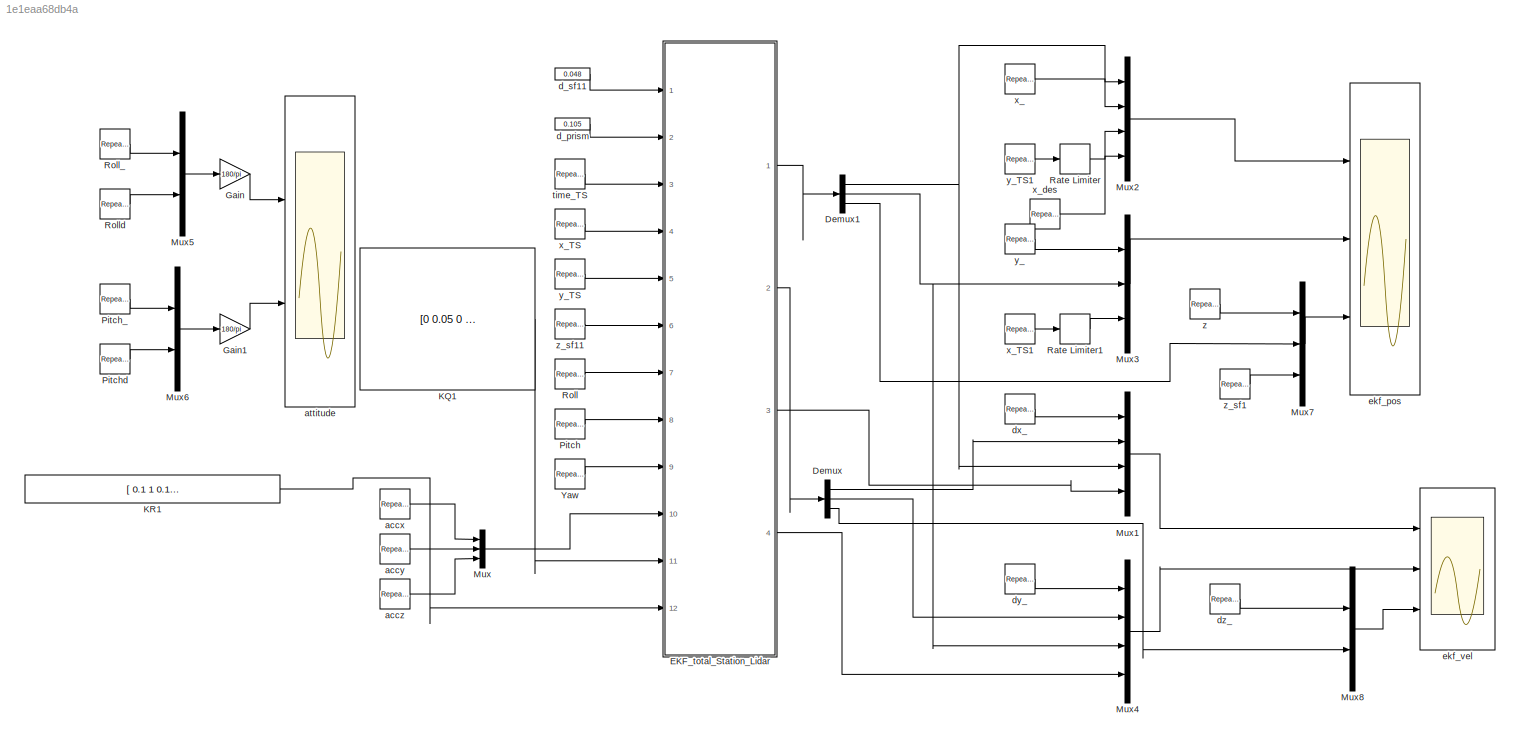
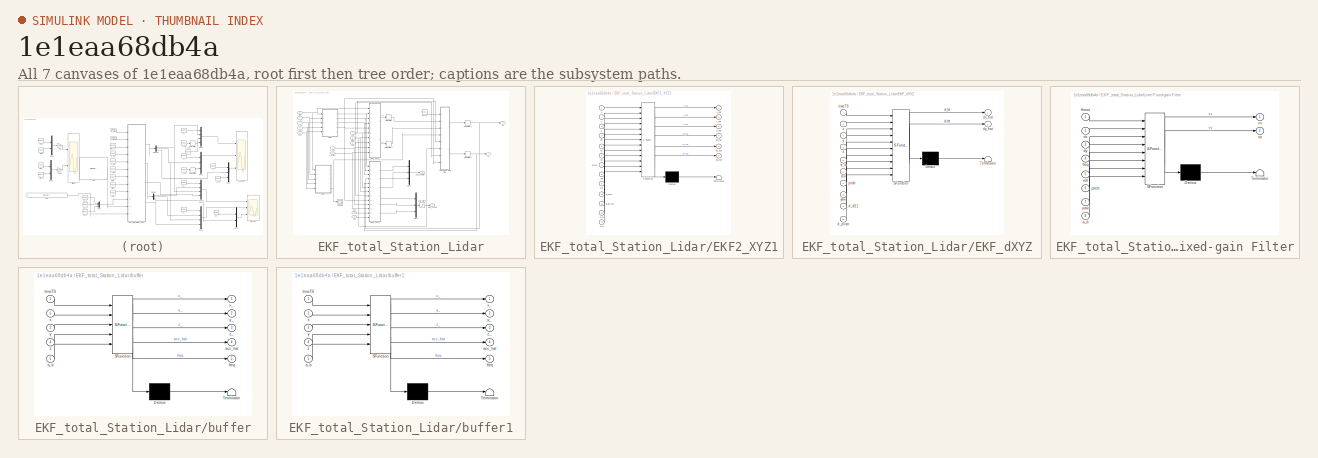
[diagram: thumbnail index - all 7 canvases of the model, root first then tree order]
MODEL slx_1e1eaa68db4a
KIND model
CONFIG AbsTol = auto
CONFIG EnableMultiTasking = off
CONFIG FixedStep = 0.0025
CONFIG InitFcn = time = Data(size(Data,1),1);
CONFIG MaxStep = auto
CONFIG MinStep = auto
CONFIG RelTol = 1e-3
CONFIG SampleTimeConstraint = Unconstrained
CONFIG Solver = FixedStepDiscrete
CONFIG SolverName = FixedStepDiscrete
CONFIG StartTime = 0.0
CONFIG StopTime = time
BLOCK [Demux] Demux
  DisplayOption = bar
  Outputs = 3
  Ports = [1, 3]
BLOCK [Demux] Demux1
  DisplayOption = bar
  Outputs = 3
  Ports = [1, 3]
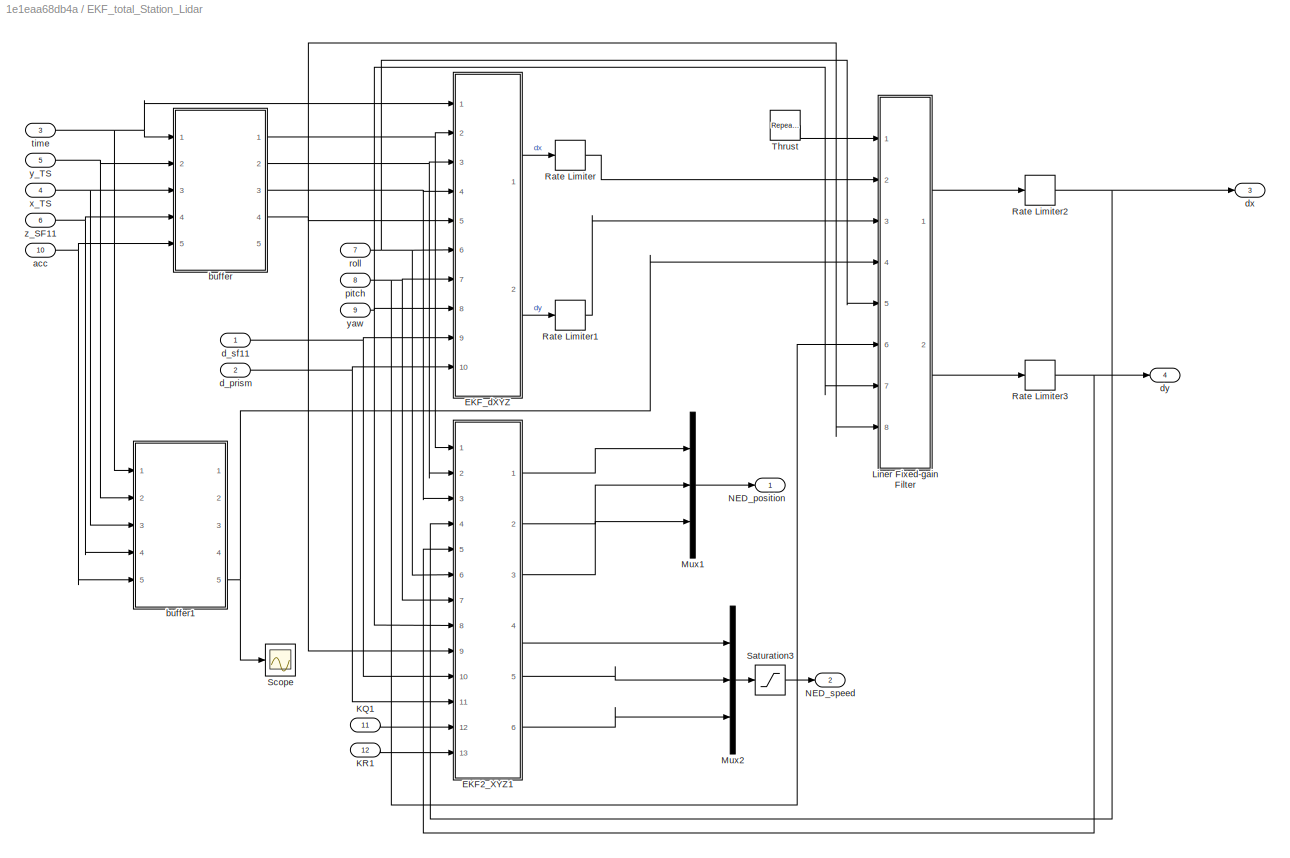
BLOCK [SubSystem] EKF_total_Station_Lidar
  Ports = [12, 4]
  RequestExecContextInheritance = off
  Variant = off
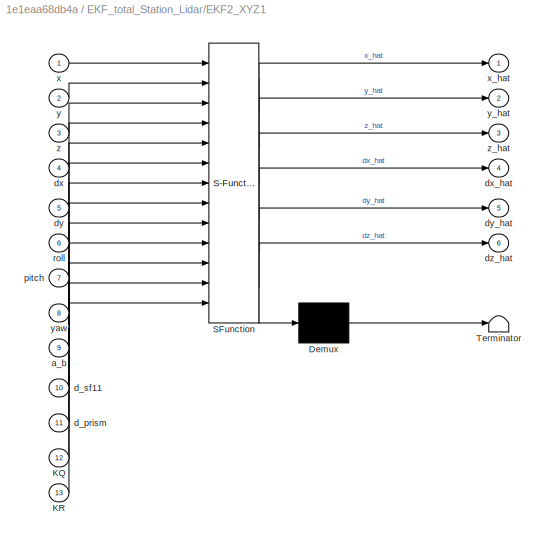
BLOCK [SubSystem] EKF_total_Station_Lidar/EKF2_XYZ1
  ErrorFcn = Stateflow.Translate.translate
  PermitHierarchicalResolution = ExplicitOnly
  Ports = [13, 6]
  RequestExecContextInheritance = off
  SFBlockType = MATLAB Function
  TreatAsAtomicUnit = on
  Variant = off
BLOCK [Demux] EKF_total_Station_Lidar/EKF2_XYZ1/ Demux 
  Outputs = 1
  Ports = [1, 1]
BLOCK [S-Function] EKF_total_Station_Lidar/EKF2_XYZ1/ SFunction 
  EnableBusSupport = on
  FunctionName = sf_sfun
  PortCounts = [13 7]
  Ports = [13, 7]
  SFcnIsStateOwnerBlock = off
  SFunctionDeploymentMode = off
  Tag = Stateflow S-Function Tests 5
BLOCK [Terminator] EKF_total_Station_Lidar/EKF2_XYZ1/ Terminator 
BLOCK [Inport] EKF_total_Station_Lidar/EKF2_XYZ1/KQ
  IconDisplay = Port number
  Port = 12
BLOCK [Inport] EKF_total_Station_Lidar/EKF2_XYZ1/KR
  IconDisplay = Port number
  Port = 13
BLOCK [Inport] EKF_total_Station_Lidar/EKF2_XYZ1/a_b
  IconDisplay = Port number
  Port = 9
BLOCK [Inport] EKF_total_Station_Lidar/EKF2_XYZ1/d_prism
  IconDisplay = Port number
  Port = 11
BLOCK [Inport] EKF_total_Station_Lidar/EKF2_XYZ1/d_sf11
  IconDisplay = Port number
  Port = 10
BLOCK [Inport] EKF_total_Station_Lidar/EKF2_XYZ1/dx
  IconDisplay = Port number
  Port = 4
BLOCK [Outport] EKF_total_Station_Lidar/EKF2_XYZ1/dx_hat
  IconDisplay = Port number
  Port = 4
BLOCK [Inport] EKF_total_Station_Lidar/EKF2_XYZ1/dy
  IconDisplay = Port number
  Port = 5
BLOCK [Outport] EKF_total_Station_Lidar/EKF2_XYZ1/dy_hat
  IconDisplay = Port number
  Port = 5
BLOCK [Outport] EKF_total_Station_Lidar/EKF2_XYZ1/dz_hat
  IconDisplay = Port number
  Port = 6
BLOCK [Inport] EKF_total_Station_Lidar/EKF2_XYZ1/pitch
  IconDisplay = Port number
  Port = 7
BLOCK [Inport] EKF_total_Station_Lidar/EKF2_XYZ1/roll
  IconDisplay = Port number
  Port = 6
BLOCK [Inport] EKF_total_Station_Lidar/EKF2_XYZ1/x
  IconDisplay = Port number
BLOCK [Outport] EKF_total_Station_Lidar/EKF2_XYZ1/x_hat
  IconDisplay = Port number
BLOCK [Inport] EKF_total_Station_Lidar/EKF2_XYZ1/y
  IconDisplay = Port number
  Port = 2
BLOCK [Outport] EKF_total_Station_Lidar/EKF2_XYZ1/y_hat
  IconDisplay = Port number
  Port = 2
BLOCK [Inport] EKF_total_Station_Lidar/EKF2_XYZ1/yaw
  IconDisplay = Port number
  Port = 8
BLOCK [Inport] EKF_total_Station_Lidar/EKF2_XYZ1/z
  IconDisplay = Port number
  Port = 3
BLOCK [Outport] EKF_total_Station_Lidar/EKF2_XYZ1/z_hat
  IconDisplay = Port number
  Port = 3
BLOCK [SubSystem] EKF_total_Station_Lidar/EKF_dXYZ
  ErrorFcn = Stateflow.Translate.translate
  PermitHierarchicalResolution = ExplicitOnly
  Ports = [10, 2]
  RequestExecContextInheritance = off
  SFBlockType = MATLAB Function
  TreatAsAtomicUnit = on
  Variant = off
BLOCK [Demux] EKF_total_Station_Lidar/EKF_dXYZ/ Demux 
  Outputs = 1
  Ports = [1, 1]
BLOCK [S-Function] EKF_total_Station_Lidar/EKF_dXYZ/ SFunction 
  EnableBusSupport = on
  FunctionName = sf_sfun
  PortCounts = [10 3]
  Ports = [10, 3]
  SFcnIsStateOwnerBlock = off
  SFunctionDeploymentMode = off
  Tag = Stateflow S-Function Tests 1
BLOCK [Terminator] EKF_total_Station_Lidar/EKF_dXYZ/ Terminator 
BLOCK [Inport] EKF_total_Station_Lidar/EKF_dXYZ/a_b
  IconDisplay = Port number
  Port = 5
BLOCK [Inport] EKF_total_Station_Lidar/EKF_dXYZ/d_prism
  IconDisplay = Port number
  Port = 10
BLOCK [Inport] EKF_total_Station_Lidar/EKF_dXYZ/d_sf11
  IconDisplay = Port number
  Port = 9
BLOCK [Outport] EKF_total_Station_Lidar/EKF_dXYZ/dx_hat
  IconDisplay = Port number
BLOCK [Outport] EKF_total_Station_Lidar/EKF_dXYZ/dy_hat
  IconDisplay = Port number
  Port = 2
BLOCK [Inport] EKF_total_Station_Lidar/EKF_dXYZ/pitch
  IconDisplay = Port number
  Port = 7
BLOCK [Inport] EKF_total_Station_Lidar/EKF_dXYZ/roll
  IconDisplay = Port number
  Port = 6
BLOCK [Inport] EKF_total_Station_Lidar/EKF_dXYZ/timeTS
  IconDisplay = Port number
BLOCK [Inport] EKF_total_Station_Lidar/EKF_dXYZ/x
  IconDisplay = Port number
  Port = 2
BLOCK [Inport] EKF_total_Station_Lidar/EKF_dXYZ/y
  IconDisplay = Port number
  Port = 3
BLOCK [Inport] EKF_total_Station_Lidar/EKF_dXYZ/yaw
  IconDisplay = Port number
  Port = 8
BLOCK [Inport] EKF_total_Station_Lidar/EKF_dXYZ/z
  IconDisplay = Port number
  Port = 4
BLOCK [Inport] EKF_total_Station_Lidar/KQ1
  IconDisplay = Port number
  Port = 11
BLOCK [Inport] EKF_total_Station_Lidar/KR1
  IconDisplay = Port number
  Port = 12
BLOCK [SubSystem] EKF_total_Station_Lidar/Liner Fixed-gain Filter
  ErrorFcn = Stateflow.Translate.translate
  PermitHierarchicalResolution = ExplicitOnly
  Ports = [8, 2]
  RequestExecContextInheritance = off
  SFBlockType = MATLAB Function
  TreatAsAtomicUnit = on
  Variant = off
BLOCK [Demux] EKF_total_Station_Lidar/Liner Fixed-gain Filter/ Demux 
  Outputs = 1
  Ports = [1, 1]
BLOCK [S-Function] EKF_total_Station_Lidar/Liner Fixed-gain Filter/ SFunction 
  EnableBusSupport = on
  FunctionName = sf_sfun
  PortCounts = [8 3]
  Ports = [8, 3]
  SFcnIsStateOwnerBlock = off
  SFunctionDeploymentMode = off
  Tag = Stateflow S-Function Tests 4
BLOCK [Terminator] EKF_total_Station_Lidar/Liner Fixed-gain Filter/ Terminator 
BLOCK [Inport] EKF_total_Station_Lidar/Liner Fixed-gain Filter/a_b
  IconDisplay = Port number
  Port = 8
BLOCK [Inport] EKF_total_Station_Lidar/Liner Fixed-gain Filter/dx
  IconDisplay = Port number
  Port = 2
BLOCK [Inport] EKF_total_Station_Lidar/Liner Fixed-gain Filter/dy
  IconDisplay = Port number
  Port = 3
BLOCK [Inport] EKF_total_Station_Lidar/Liner Fixed-gain Filter/freq
  IconDisplay = Port number
  Port = 4
BLOCK [Inport] EKF_total_Station_Lidar/Liner Fixed-gain Filter/pitch
  IconDisplay = Port number
  Port = 6
BLOCK [Inport] EKF_total_Station_Lidar/Liner Fixed-gain Filter/roll
  IconDisplay = Port number
  Port = 5
BLOCK [Inport] EKF_total_Station_Lidar/Liner Fixed-gain Filter/thrust
  IconDisplay = Port number
BLOCK [Outport] EKF_total_Station_Lidar/Liner Fixed-gain Filter/vx
  IconDisplay = Port number
BLOCK [Outport] EKF_total_Station_Lidar/Liner Fixed-gain Filter/vy
  IconDisplay = Port number
  Port = 2
BLOCK [Inport] EKF_total_Station_Lidar/Liner Fixed-gain Filter/yaw
  IconDisplay = Port number
  Port = 7
BLOCK [Mux] EKF_total_Station_Lidar/Mux1
  DisplayOption = bar
  Inputs = 3
  Ports = [3, 1]
BLOCK [Mux] EKF_total_Station_Lidar/Mux2
  DisplayOption = bar
  Inputs = 3
  Ports = [3, 1]
BLOCK [Outport] EKF_total_Station_Lidar/NED_position
  IconDisplay = Port number
BLOCK [Outport] EKF_total_Station_Lidar/NED_speed
  IconDisplay = Port number
  Port = 2
BLOCK [RateLimiter] EKF_total_Station_Lidar/Rate Limiter
  FallingSlewLimit = -5
  RisingSlewLimit = 5
  SampleTimeMode = inherited
BLOCK [RateLimiter] EKF_total_Station_Lidar/Rate Limiter1
  FallingSlewLimit = -5
  RisingSlewLimit = 5
  SampleTimeMode = inherited
BLOCK [RateLimiter] EKF_total_Station_Lidar/Rate Limiter2
  FallingSlewLimit = -5
  RisingSlewLimit = 5
  SampleTimeMode = inherited
BLOCK [RateLimiter] EKF_total_Station_Lidar/Rate Limiter3
  FallingSlewLimit = -5
  RisingSlewLimit = 5
  SampleTimeMode = inherited
BLOCK [Saturate] EKF_total_Station_Lidar/Saturation3
  InputPortMap = u0
  LowerLimit = -10
  Ports = [1, 1]
  UpperLimit = 10
BLOCK [Scope] EKF_total_Station_Lidar/Scope
  NumInputPorts = 1
  Ports = [1]
  ScopeSpecificationString = Simulink.scopes.TimeScopeBlockCfg('CurrentConfiguration', extmgr.ConfigurationSet(extmgr.Configuration('Core','General UI',true),extmgr.Configuration('Core','Source UI',true),extmgr.Configuration('Sources','WiredSimulink',true,'DataLoggingVariableName','ScopeData1'),extmgr.Configuration('Visuals','Time Domain',true,'SerializedDisplays',{struct('MinYLimReal','-1.25','MaxYLimReal','21.25','YLabelRea...<+1455ch>
BLOCK [Reference] EKF_total_Station_Lidar/Thrust  REF=simulink/Sources/Repeating
Sequence
Interpolated
  Ports = [0, 1]
  SourceBlock = simulink/Sources/Repeating\nSequence\nInterpolated
  SourceProductBaseCode = SL
  SourceProductName = Simulink
  SourceType = Repeating Sequence Interpolated
BLOCK [Inport] EKF_total_Station_Lidar/acc
  IconDisplay = Port number
  Port = 10
BLOCK [SubSystem] EKF_total_Station_Lidar/buffer
  ErrorFcn = Stateflow.Translate.translate
  PermitHierarchicalResolution = ExplicitOnly
  Ports = [5, 5]
  RequestExecContextInheritance = off
  SFBlockType = MATLAB Function
  TreatAsAtomicUnit = on
  Variant = off
BLOCK [Demux] EKF_total_Station_Lidar/buffer/ Demux 
  Outputs = 1
  Ports = [1, 1]
BLOCK [S-Function] EKF_total_Station_Lidar/buffer/ SFunction 
  EnableBusSupport = on
  FunctionName = sf_sfun
  PortCounts = [5 6]
  Ports = [5, 6]
  SFcnIsStateOwnerBlock = off
  SFunctionDeploymentMode = off
  Tag = Stateflow S-Function Tests 3
BLOCK [Terminator] EKF_total_Station_Lidar/buffer/ Terminator 
BLOCK [Inport] EKF_total_Station_Lidar/buffer/a_b
  IconDisplay = Port number
  Port = 5
BLOCK [Outport] EKF_total_Station_Lidar/buffer/acc_hat
  IconDisplay = Port number
  Port = 4
BLOCK [Outport] EKF_total_Station_Lidar/buffer/freq
  IconDisplay = Port number
  Port = 5
BLOCK [Inport] EKF_total_Station_Lidar/buffer/timeTS
  IconDisplay = Port number
BLOCK [Inport] EKF_total_Station_Lidar/buffer/x
  IconDisplay = Port number
  Port = 2
BLOCK [Outport] EKF_total_Station_Lidar/buffer/x_
  IconDisplay = Port number
BLOCK [Inport] EKF_total_Station_Lidar/buffer/y
  IconDisplay = Port number
  Port = 3
BLOCK [Outport] EKF_total_Station_Lidar/buffer/y_
  IconDisplay = Port number
  Port = 2
BLOCK [Inport] EKF_total_Station_Lidar/buffer/z
  IconDisplay = Port number
  Port = 4
BLOCK [Outport] EKF_total_Station_Lidar/buffer/z_
  IconDisplay = Port number
  Port = 3
BLOCK [SubSystem] EKF_total_Station_Lidar/buffer1
  ErrorFcn = Stateflow.Translate.translate
  PermitHierarchicalResolution = ExplicitOnly
  Ports = [5, 5]
  RequestExecContextInheritance = off
  SFBlockType = MATLAB Function
  TreatAsAtomicUnit = on
  Variant = off
BLOCK [Demux] EKF_total_Station_Lidar/buffer1/ Demux 
  Outputs = 1
  Ports = [1, 1]
BLOCK [S-Function] EKF_total_Station_Lidar/buffer1/ SFunction 
  EnableBusSupport = on
  FunctionName = sf_sfun
  PortCounts = [5 6]
  Ports = [5, 6]
  SFcnIsStateOwnerBlock = off
  SFunctionDeploymentMode = off
  Tag = Stateflow S-Function Tests 2
BLOCK [Terminator] EKF_total_Station_Lidar/buffer1/ Terminator 
BLOCK [Inport] EKF_total_Station_Lidar/buffer1/a_b
  IconDisplay = Port number
  Port = 5
BLOCK [Outport] EKF_total_Station_Lidar/buffer1/acc_hat
  IconDisplay = Port number
  Port = 4
BLOCK [Outport] EKF_total_Station_Lidar/buffer1/freq
  IconDisplay = Port number
  Port = 5
BLOCK [Inport] EKF_total_Station_Lidar/buffer1/timeTS
  IconDisplay = Port number
BLOCK [Inport] EKF_total_Station_Lidar/buffer1/x
  IconDisplay = Port number
  Port = 2
BLOCK [Outport] EKF_total_Station_Lidar/buffer1/x_
  IconDisplay = Port number
BLOCK [Inport] EKF_total_Station_Lidar/buffer1/y
  IconDisplay = Port number
  Port = 3
BLOCK [Outport] EKF_total_Station_Lidar/buffer1/y_
  IconDisplay = Port number
  Port = 2
BLOCK [Inport] EKF_total_Station_Lidar/buffer1/z
  IconDisplay = Port number
  Port = 4
BLOCK [Outport] EKF_total_Station_Lidar/buffer1/z_
  IconDisplay = Port number
  Port = 3
BLOCK [Inport] EKF_total_Station_Lidar/d_prism
  IconDisplay = Port number
  Port = 2
BLOCK [Inport] EKF_total_Station_Lidar/d_sf11
  IconDisplay = Port number
BLOCK [Outport] EKF_total_Station_Lidar/dx
  IconDisplay = Port number
  Port = 3
BLOCK [Outport] EKF_total_Station_Lidar/dy
  IconDisplay = Port number
  Port = 4
BLOCK [Inport] EKF_total_Station_Lidar/pitch
  IconDisplay = Port number
  Port = 8
BLOCK [Inport] EKF_total_Station_Lidar/roll
  IconDisplay = Port number
  Port = 7
BLOCK [Inport] EKF_total_Station_Lidar/time
  IconDisplay = Port number
  Port = 3
BLOCK [Inport] EKF_total_Station_Lidar/x_TS
  IconDisplay = Port number
  Port = 4
BLOCK [Inport] EKF_total_Station_Lidar/y_TS
  IconDisplay = Port number
  Port = 5
BLOCK [Inport] EKF_total_Station_Lidar/yaw
  IconDisplay = Port number
  Port = 9
BLOCK [Inport] EKF_total_Station_Lidar/z_SF11
  IconDisplay = Port number
  Port = 6
BLOCK [Gain] Gain
  Gain = 180/pi
  OutDataTypeStr = Inherit: Inherit via internal rule
  ParamDataTypeStr = Inherit: Inherit via internal rule
  SaturateOnIntegerOverflow = off
BLOCK [Gain] Gain1
  Gain = 180/pi
  OutDataTypeStr = Inherit: Inherit via internal rule
  ParamDataTypeStr = Inherit: Inherit via internal rule
  SaturateOnIntegerOverflow = off
BLOCK [Constant] KQ1
  Value = [0 0.05  0 0.05 0 0.0025]
BLOCK [Constant] KR1
  Value = [ 0.1 1 0.1 1 0.1]
BLOCK [Mux] Mux
  DisplayOption = bar
  Inputs = 3
  Ports = [3, 1]
BLOCK [Mux] Mux1
  DisplayOption = bar
  Ports = [4, 1]
BLOCK [Mux] Mux2
  DisplayOption = bar
  Ports = [4, 1]
BLOCK [Mux] Mux3
  DisplayOption = bar
  Inputs = 3
  Ports = [3, 1]
BLOCK [Mux] Mux4
  DisplayOption = bar
  Ports = [4, 1]
BLOCK [Mux] Mux5
  DisplayOption = bar
  Inputs = 2
  Ports = [2, 1]
BLOCK [Mux] Mux6
  DisplayOption = bar
  Inputs = 2
  Ports = [2, 1]
BLOCK [Mux] Mux7
  DisplayOption = bar
  Inputs = 3
  Ports = [3, 1]
BLOCK [Mux] Mux8
  DisplayOption = bar
  Inputs = 2
  Ports = [2, 1]
BLOCK [Reference] Pitch  REF=simulink/Sources/Repeating
Sequence
Interpolated
  Ports = [0, 1]
  SourceBlock = simulink/Sources/Repeating\nSequence\nInterpolated
  SourceProductBaseCode = SL
  SourceProductName = Simulink
  SourceType = Repeating Sequence Interpolated
BLOCK [Reference] Pitch_  REF=simulink/Sources/Repeating
Sequence
Interpolated
  Ports = [0, 1]
  SourceBlock = simulink/Sources/Repeating\nSequence\nInterpolated
  SourceProductBaseCode = SL
  SourceProductName = Simulink
  SourceType = Repeating Sequence Interpolated
BLOCK [Reference] Pitchd  REF=simulink/Sources/Repeating
Sequence
Interpolated
  Ports = [0, 1]
  SourceBlock = simulink/Sources/Repeating\nSequence\nInterpolated
  SourceProductBaseCode = SL
  SourceProductName = Simulink
  SourceType = Repeating Sequence Interpolated
BLOCK [RateLimiter] Rate Limiter
  FallingSlewLimit = -10
  RisingSlewLimit = 10
  SampleTimeMode = inherited
BLOCK [RateLimiter] Rate Limiter1
  FallingSlewLimit = -10
  RisingSlewLimit = 10
  SampleTimeMode = inherited
BLOCK [Reference] Roll  REF=simulink/Sources/Repeating
Sequence
Interpolated
  Ports = [0, 1]
  SourceBlock = simulink/Sources/Repeating\nSequence\nInterpolated
  SourceProductBaseCode = SL
  SourceProductName = Simulink
  SourceType = Repeating Sequence Interpolated
BLOCK [Reference] Roll_  REF=simulink/Sources/Repeating
Sequence
Interpolated
  Ports = [0, 1]
  SourceBlock = simulink/Sources/Repeating\nSequence\nInterpolated
  SourceProductBaseCode = SL
  SourceProductName = Simulink
  SourceType = Repeating Sequence Interpolated
BLOCK [Reference] Rolld  REF=simulink/Sources/Repeating
Sequence
Interpolated
  Ports = [0, 1]
  SourceBlock = simulink/Sources/Repeating\nSequence\nInterpolated
  SourceProductBaseCode = SL
  SourceProductName = Simulink
  SourceType = Repeating Sequence Interpolated
BLOCK [Reference] Yaw  REF=simulink/Sources/Repeating
Sequence
Interpolated
  Ports = [0, 1]
  SourceBlock = simulink/Sources/Repeating\nSequence\nInterpolated
  SourceProductBaseCode = SL
  SourceProductName = Simulink
  SourceType = Repeating Sequence Interpolated
BLOCK [Reference] accx  REF=simulink/Sources/Repeating
Sequence
Interpolated
  Ports = [0, 1]
  SourceBlock = simulink/Sources/Repeating\nSequence\nInterpolated
  SourceProductBaseCode = SL
  SourceProductName = Simulink
  SourceType = Repeating Sequence Interpolated
BLOCK [Reference] accy  REF=simulink/Sources/Repeating
Sequence
Interpolated
  Ports = [0, 1]
  SourceBlock = simulink/Sources/Repeating\nSequence\nInterpolated
  SourceProductBaseCode = SL
  SourceProductName = Simulink
  SourceType = Repeating Sequence Interpolated
BLOCK [Reference] accz  REF=simulink/Sources/Repeating
Sequence
Interpolated
  Ports = [0, 1]
  SourceBlock = simulink/Sources/Repeating\nSequence\nInterpolated
  SourceProductBaseCode = SL
  SourceProductName = Simulink
  SourceType = Repeating Sequence Interpolated
BLOCK [Scope] attitude
  NumInputPorts = 2
  Ports = [2]
  ScopeSpecificationString = Simulink.scopes.TimeScopeBlockCfg('CurrentConfiguration', extmgr.ConfigurationSet(extmgr.Configuration('Core','General UI',true),extmgr.Configuration('Core','Source UI',true),extmgr.Configuration('Sources','WiredSimulink',true,'DataLoggingVariableName','ScopeData2'),extmgr.Configuration('Visuals','Time Domain',true,'SerializedDisplays',{struct('MinYLimReal','-86.78739','MaxYLimReal','67.12467','YL...<+2171ch>
BLOCK [Constant] d_prism
  Value = 0.105
BLOCK [Constant] d_sf11
  Value = 0.048
BLOCK [Reference] dx_  REF=simulink/Sources/Repeating
Sequence
Interpolated
  Ports = [0, 1]
  SourceBlock = simulink/Sources/Repeating\nSequence\nInterpolated
  SourceProductBaseCode = SL
  SourceProductName = Simulink
  SourceType = Repeating Sequence Interpolated
BLOCK [Reference] dy_  REF=simulink/Sources/Repeating
Sequence
Interpolated
  Ports = [0, 1]
  SourceBlock = simulink/Sources/Repeating\nSequence\nInterpolated
  SourceProductBaseCode = SL
  SourceProductName = Simulink
  SourceType = Repeating Sequence Interpolated
BLOCK [Reference] dz_  REF=simulink/Sources/Repeating
Sequence
Interpolated
  Ports = [0, 1]
  SourceBlock = simulink/Sources/Repeating\nSequence\nInterpolated
  SourceProductBaseCode = SL
  SourceProductName = Simulink
  SourceType = Repeating Sequence Interpolated
BLOCK [Scope] ekf_pos
  NumInputPorts = 3
  Ports = [3]
  ScopeSpecificationString = Simulink.scopes.TimeScopeBlockCfg('CurrentConfiguration', extmgr.ConfigurationSet(extmgr.Configuration('Core','General UI',true),extmgr.Configuration('Core','Source UI',true),extmgr.Configuration('Sources','WiredSimulink',true),extmgr.Configuration('Visuals','Time Domain',true,'SerializedDisplays',{struct('MinYLimReal','-0.47594','MaxYLimReal','10.58793','YLabelReal','','MinYLimMag','0.00000','Max...<+2891ch>
BLOCK [Scope] ekf_vel
  NumInputPorts = 3
  Ports = [3]
  ScopeSpecificationString = Simulink.scopes.TimeScopeBlockCfg('CurrentConfiguration', extmgr.ConfigurationSet(extmgr.Configuration('Core','General UI',true),extmgr.Configuration('Core','Source UI',true),extmgr.Configuration('Sources','WiredSimulink',true,'DataLoggingVariableName','ScopeData1'),extmgr.Configuration('Visuals','Time Domain',true,'SerializedDisplays',{struct('MinYLimReal','1.01747','MaxYLimReal','13.373','YLabel...<+2941ch>
BLOCK [Reference] time_TS  REF=simulink/Sources/Repeating
Sequence
Interpolated
  Ports = [0, 1]
  SourceBlock = simulink/Sources/Repeating\nSequence\nInterpolated
  SourceProductBaseCode = SL
  SourceProductName = Simulink
  SourceType = Repeating Sequence Interpolated
BLOCK [Reference] x_  REF=simulink/Sources/Repeating
Sequence
Interpolated
  Ports = [0, 1]
  SourceBlock = simulink/Sources/Repeating\nSequence\nInterpolated
  SourceProductBaseCode = SL
  SourceProductName = Simulink
  SourceType = Repeating Sequence Interpolated
BLOCK [Reference] x_TS  REF=simulink/Sources/Repeating
Sequence
Interpolated
  Ports = [0, 1]
  SourceBlock = simulink/Sources/Repeating\nSequence\nInterpolated
  SourceProductBaseCode = SL
  SourceProductName = Simulink
  SourceType = Repeating Sequence Interpolated
BLOCK [Reference] x_TS1  REF=simulink/Sources/Repeating
Sequence
Interpolated
  Ports = [0, 1]
  SourceBlock = simulink/Sources/Repeating\nSequence\nInterpolated
  SourceProductBaseCode = SL
  SourceProductName = Simulink
  SourceType = Repeating Sequence Interpolated
BLOCK [Reference] x_des  REF=simulink/Sources/Repeating
Sequence
Interpolated
  Ports = [0, 1]
  SourceBlock = simulink/Sources/Repeating\nSequence\nInterpolated
  SourceProductBaseCode = SL
  SourceProductName = Simulink
  SourceType = Repeating Sequence Interpolated
BLOCK [Reference] y_  REF=simulink/Sources/Repeating
Sequence
Interpolated
  Ports = [0, 1]
  SourceBlock = simulink/Sources/Repeating\nSequence\nInterpolated
  SourceProductBaseCode = SL
  SourceProductName = Simulink
  SourceType = Repeating Sequence Interpolated
BLOCK [Reference] y_TS  REF=simulink/Sources/Repeating
Sequence
Interpolated
  Ports = [0, 1]
  SourceBlock = simulink/Sources/Repeating\nSequence\nInterpolated
  SourceProductBaseCode = SL
  SourceProductName = Simulink
  SourceType = Repeating Sequence Interpolated
BLOCK [Reference] y_TS1  REF=simulink/Sources/Repeating
Sequence
Interpolated
  Ports = [0, 1]
  SourceBlock = simulink/Sources/Repeating\nSequence\nInterpolated
  SourceProductBaseCode = SL
  SourceProductName = Simulink
  SourceType = Repeating Sequence Interpolated
BLOCK [Reference] z  REF=simulink/Sources/Repeating
Sequence
Interpolated
  Ports = [0, 1]
  SourceBlock = simulink/Sources/Repeating\nSequence\nInterpolated
  SourceProductBaseCode = SL
  SourceProductName = Simulink
  SourceType = Repeating Sequence Interpolated
BLOCK [Reference] z_sf1  REF=simulink/Sources/Repeating
Sequence
Interpolated
  Ports = [0, 1]
  SourceBlock = simulink/Sources/Repeating\nSequence\nInterpolated
  SourceProductBaseCode = SL
  SourceProductName = Simulink
  SourceType = Repeating Sequence Interpolated
BLOCK [Reference] z_sf11  REF=simulink/Sources/Repeating
Sequence
Interpolated
  Ports = [0, 1]
  SourceBlock = simulink/Sources/Repeating\nSequence\nInterpolated
  SourceProductBaseCode = SL
  SourceProductName = Simulink
  SourceType = Repeating Sequence Interpolated
NET Demux1:1 -> Mux1:3, Mux2:2
NET Demux1:2 -> Mux3:2, Mux4:3
LINE Demux1:3 -> Mux7:2
LINE Demux:1 -> Mux1:2
LINE Demux:2 -> Mux4:2
LINE Demux:3 -> Mux8:2
LINE EKF_total_Station_Lidar/EKF2_XYZ1:1 -> EKF_total_Station_Lidar/Mux1:1
LINE EKF_total_Station_Lidar/EKF2_XYZ1:2 -> EKF_total_Station_Lidar/Mux1:2
LINE EKF_total_Station_Lidar/EKF2_XYZ1:3 -> EKF_total_Station_Lidar/Mux1:3
LINE EKF_total_Station_Lidar/EKF2_XYZ1:4 -> EKF_total_Station_Lidar/Mux2:1
LINE EKF_total_Station_Lidar/EKF2_XYZ1:5 -> EKF_total_Station_Lidar/Mux2:2
LINE EKF_total_Station_Lidar/EKF2_XYZ1:6 -> EKF_total_Station_Lidar/Mux2:3
LINE EKF_total_Station_Lidar/EKF_dXYZ:1 -> EKF_total_Station_Lidar/Rate Limiter:1
LINE EKF_total_Station_Lidar/EKF_dXYZ:2 -> EKF_total_Station_Lidar/Rate Limiter1:1
LINE EKF_total_Station_Lidar/KQ1:1 -> EKF_total_Station_Lidar/EKF2_XYZ1:12
LINE EKF_total_Station_Lidar/KR1:1 -> EKF_total_Station_Lidar/EKF2_XYZ1:13
LINE EKF_total_Station_Lidar/Liner Fixed-gain Filter:1 -> EKF_total_Station_Lidar/Rate Limiter2:1
LINE EKF_total_Station_Lidar/Liner Fixed-gain Filter:2 -> EKF_total_Station_Lidar/Rate Limiter3:1
LINE EKF_total_Station_Lidar/Mux1:1 -> EKF_total_Station_Lidar/NED_position:1
LINE EKF_total_Station_Lidar/Mux2:1 -> EKF_total_Station_Lidar/Saturation3:1
LINE EKF_total_Station_Lidar/Rate Limiter1:1 -> EKF_total_Station_Lidar/Liner Fixed-gain Filter:3
NET EKF_total_Station_Lidar/Rate Limiter2:1 -> EKF_total_Station_Lidar/EKF2_XYZ1:4, EKF_total_Station_Lidar/dx:1
NET EKF_total_Station_Lidar/Rate Limiter3:1 -> EKF_total_Station_Lidar/EKF2_XYZ1:5, EKF_total_Station_Lidar/dy:1
LINE EKF_total_Station_Lidar/Rate Limiter:1 -> EKF_total_Station_Lidar/Liner Fixed-gain Filter:2
LINE EKF_total_Station_Lidar/Saturation3:1 -> EKF_total_Station_Lidar/NED_speed:1
LINE EKF_total_Station_Lidar/Thrust:1 -> EKF_total_Station_Lidar/Liner Fixed-gain Filter:1
NET EKF_total_Station_Lidar/acc:1 -> EKF_total_Station_Lidar/buffer1:5, EKF_total_Station_Lidar/buffer:5
NET EKF_total_Station_Lidar/buffer1:5 -> EKF_total_Station_Lidar/Liner Fixed-gain Filter:4, EKF_total_Station_Lidar/Scope:1
NET EKF_total_Station_Lidar/buffer:1 -> EKF_total_Station_Lidar/EKF2_XYZ1:1, EKF_total_Station_Lidar/EKF_dXYZ:2
NET EKF_total_Station_Lidar/buffer:2 -> EKF_total_Station_Lidar/EKF2_XYZ1:2, EKF_total_Station_Lidar/EKF_dXYZ:3
NET EKF_total_Station_Lidar/buffer:3 -> EKF_total_Station_Lidar/EKF2_XYZ1:3, EKF_total_Station_Lidar/EKF_dXYZ:4
NET EKF_total_Station_Lidar/buffer:4 -> EKF_total_Station_Lidar/EKF2_XYZ1:9, EKF_total_Station_Lidar/EKF_dXYZ:5, EKF_total_Station_Lidar/Liner Fixed-gain Filter:8
NET EKF_total_Station_Lidar/d_prism:1 -> EKF_total_Station_Lidar/EKF2_XYZ1:11, EKF_total_Station_Lidar/EKF_dXYZ:10
NET EKF_total_Station_Lidar/d_sf11:1 -> EKF_total_Station_Lidar/EKF2_XYZ1:10, EKF_total_Station_Lidar/EKF_dXYZ:9
NET EKF_total_Station_Lidar/pitch:1 -> EKF_total_Station_Lidar/EKF2_XYZ1:7, EKF_total_Station_Lidar/EKF_dXYZ:7, EKF_total_Station_Lidar/Liner Fixed-gain Filter:6
NET EKF_total_Station_Lidar/roll:1 -> EKF_total_Station_Lidar/EKF2_XYZ1:6, EKF_total_Station_Lidar/EKF_dXYZ:6, EKF_total_Station_Lidar/Liner Fixed-gain Filter:5
NET EKF_total_Station_Lidar/time:1 -> EKF_total_Station_Lidar/EKF_dXYZ:1, EKF_total_Station_Lidar/buffer1:1, EKF_total_Station_Lidar/buffer:1
NET EKF_total_Station_Lidar/x_TS:1 -> EKF_total_Station_Lidar/buffer1:3, EKF_total_Station_Lidar/buffer:3
NET EKF_total_Station_Lidar/y_TS:1 -> EKF_total_Station_Lidar/buffer1:2, EKF_total_Station_Lidar/buffer:2
NET EKF_total_Station_Lidar/yaw:1 -> EKF_total_Station_Lidar/EKF2_XYZ1:8, EKF_total_Station_Lidar/EKF_dXYZ:8, EKF_total_Station_Lidar/Liner Fixed-gain Filter:7
NET EKF_total_Station_Lidar/z_SF11:1 -> EKF_total_Station_Lidar/buffer1:4, EKF_total_Station_Lidar/buffer:4
LINE EKF_total_Station_Lidar:1 -> Demux1:1
LINE EKF_total_Station_Lidar:2 -> Demux:1
LINE EKF_total_Station_Lidar:3 -> Mux1:4
LINE EKF_total_Station_Lidar:4 -> Mux4:4
LINE Gain1:1 -> attitude:2
LINE Gain:1 -> attitude:1
LINE KQ1:1 -> EKF_total_Station_Lidar:11
LINE KR1:1 -> EKF_total_Station_Lidar:12
LINE Mux1:1 -> ekf_vel:1
LINE Mux2:1 -> ekf_pos:1
LINE Mux3:1 -> ekf_pos:2
LINE Mux4:1 -> ekf_vel:2
LINE Mux5:1 -> Gain:1
LINE Mux6:1 -> Gain1:1
LINE Mux7:1 -> ekf_pos:3
LINE Mux8:1 -> ekf_vel:3
LINE Mux:1 -> EKF_total_Station_Lidar:10
LINE Pitch:1 -> EKF_total_Station_Lidar:8
LINE Pitch_:1 -> Mux6:1
LINE Pitchd:1 -> Mux6:2
LINE Rate Limiter1:1 -> Mux3:3
LINE Rate Limiter:1 -> Mux2:3
LINE Roll:1 -> EKF_total_Station_Lidar:7
LINE Roll_:1 -> Mux5:1
LINE Rolld:1 -> Mux5:2
LINE Yaw:1 -> EKF_total_Station_Lidar:9
LINE accx:1 -> Mux:1
LINE accy:1 -> Mux:2
LINE accz:1 -> Mux:3
LINE d_prism:1 -> EKF_total_Station_Lidar:2
LINE d_sf11:1 -> EKF_total_Station_Lidar:1
LINE dx_:1 -> Mux1:1
LINE dy_:1 -> Mux4:1
LINE dz_:1 -> Mux8:1
LINE time_TS:1 -> EKF_total_Station_Lidar:3
LINE x_:1 -> Mux2:1
LINE x_TS1:1 -> Rate Limiter1:1
LINE x_TS:1 -> EKF_total_Station_Lidar:4
LINE x_des:1 -> Mux2:4
LINE y_:1 -> Mux3:1
LINE y_TS1:1 -> Rate Limiter:1
LINE y_TS:1 -> EKF_total_Station_Lidar:5
LINE z:1 -> Mux7:1
LINE z_sf11:1 -> EKF_total_Station_Lidar:6
LINE z_sf1:1 -> Mux7:3
note: NET lines group one-source signal fan-out (src -> all destinations, sorted); 1:1 wires keep LINE
CHART EKF_total_Station_Lidar/EKF_dXYZ states=1 transitions=1
  STATE_LABEL 'eML_blk_kernel()'
  STATE_LABEL 'SCRIPT:\nfunction [dx_hat,dy_hat] = EKF(timeTS,x,y,z,a_b,roll,pitch,yaw,d_sf11,d_prism)\n\ndt = 0.0025;\n\n\na_I = [(a_b(2)-sin(pitch))*cos(yaw)-sin(yaw)*((a_b(1)+sin(roll)*cos(pitch)));\n        sin(yaw)*(a_b(2)-sin(pitch))+cos(yaw)*((a_b(1)+sin(roll)*cos(pitch)));\n        a_b(3)-cos(roll)*cos(pitch)];\n\npersistent time timeTS0 dx_k dP_k queue_dx queue_dP index Ndata timefreq\nif isempty(dx_k) || isempty(...<+2420ch>'
CHART EKF_total_Station_Lidar/buffer1 states=1 transitions=1
  STATE_LABEL 'eML_blk_kernel()'
  STATE_LABEL 'SCRIPT:\nfunction [x_,y_,z_,acc_hat,freq] = data_buffer(timeTS,x,y,z,a_b)\n\ndt = 0.0025;\npersistent buffer time index counter t0 total acc_\nif isempty(buffer)||isempty(time)||isempty(index)||isempty(counter)||isempty(t0)||isempty(total)||isempty(acc_)\n    buffer = zeros(3,20);\n    \n    time = 0;\n    index = 1;\n    counter = zeros(1,20);\n    if timeTS ~= 0\n        buffer(:,index) = [x;y;z];\n        c...<+1109ch>'
CHART EKF_total_Station_Lidar/buffer states=1 transitions=1
  STATE_LABEL 'eML_blk_kernel()'
  STATE_LABEL 'SCRIPT:\nfunction [x_,y_,z_,acc_hat,freq] = data_buffer(timeTS,x,y,z,a_b)\n\ndt = 0.0025;\npersistent buffer time index counter t0 total acc_\nif isempty(buffer)||isempty(time)||isempty(index)||isempty(counter)||isempty(t0)||isempty(total)||isempty(acc_)\n    buffer = zeros(3,20);\n    time = 0;\n    index = 1;\n    counter = 0;\n    if timeTS ~= 0\n        buffer(:,index) = [x;y;z];\n        counter = 1;\n   ...<+2061ch>'
CHART EKF_total_Station_Lidar/Liner Fixed-gain Filter states=1 transitions=1
  STATE_LABEL 'eML_blk_kernel()'
  STATE_LABEL 'SCRIPT:\nfunction [vx,vy] = linear_Fixed_Gain_Filter(thrust,dx,dy,freq,roll,pitch,yaw,a_b)\n\ndt = 0.0025;\nm = 2.5;\nmu = 0.87;\nR_yaw = [cos(yaw) -sin(yaw);sin(yaw) cos(yaw)];  \npersistent x_k P_k\nif isempty(x_k)||isempty(P_k)\n    x_k = [0;0];\n    P_k = [1 0;0 1;];\n        \nelse\n    if thrust < 40\n        thrust = 40;\n    elseif thrust >120\n        thrust = 120;\n    end\n    u = 62.5/thrust;\n    \n    \n...<+1101ch>'
CHART EKF_total_Station_Lidar/EKF2_XYZ1 states=1 transitions=1
  STATE_LABEL 'eML_blk_kernel()'
  STATE_LABEL 'SCRIPT:\nfunction [x_hat,y_hat,z_hat,dx_hat,dy_hat,dz_hat] = EKF(x,y,z,dx,dy,roll,pitch,yaw,a_b,d_sf11,d_prism,KQ,KR)\n\ndt = 0.0025;\n\na_I = [(a_b(2)-sin(pitch))*cos(yaw)-sin(yaw)*((a_b(1)+sin(roll)*cos(pitch)));\n        sin(yaw)*(a_b(2)-sin(pitch))+cos(yaw)*((a_b(1)+sin(roll)*cos(pitch)));\n        a_b(3)-cos(roll)*cos(pitch)];\n\npersistent  x_k P_k x0 y0 z0 \nif isempty(x_k) || isempty(P_k)|| isempty(...<+1626ch>'
